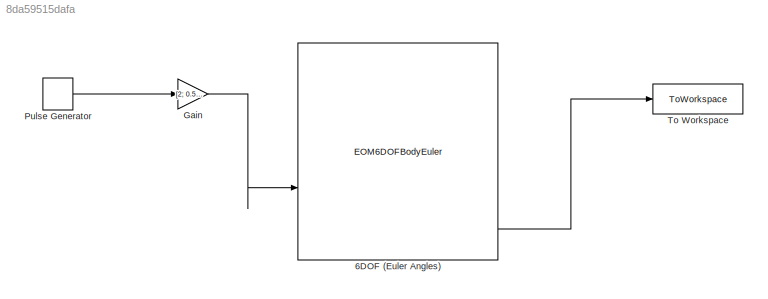
MODEL slx_8da59515dafa
KIND model
CONFIG AbsTol = auto
CONFIG EnableMultiTasking = off
CONFIG FixedStep = auto
CONFIG MaxStep = auto
CONFIG MinStep = auto
CONFIG RelTol = 1e-3
CONFIG SampleTimeConstraint = Unconstrained
CONFIG SolverName = VariableStepAuto
CONFIG StartTime = 0.0
CONFIG StopTime = 50
BLOCK [EOM6DOFBodyEuler] 6DOF (Euler Angles)
  inertia = [0.05 0 0; 0 0.05 0; 0 0 0.02]
  mass_0 = 3
  mass_flag = on
BLOCK [Gain] Gain
  Gain = [2; 0.5; 0]
  Multiplication = Matrix(K*u)
BLOCK [DiscretePulseGenerator] Pulse Generator
  Period = 100
  PhaseDelay = 10
  PulseType = Time based
  PulseWidth = 0.1
BLOCK [ToWorkspace] To Workspace
  FixptAsFi = on
  MaxDataPoints = inf
  SampleTime = -1
  VariableName = gyro_data
LINE 6DOF (Euler Angles):6 -> To Workspace:1
LINE Gain:1 -> 6DOF (Euler Angles):2
LINE Pulse Generator:1 -> Gain:1
